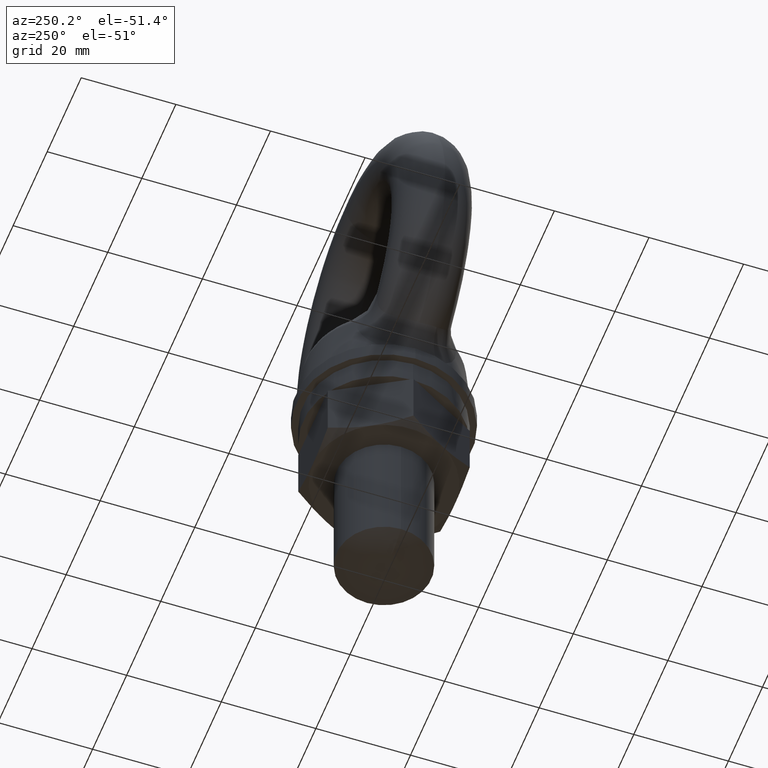
[diagram: clean part render]
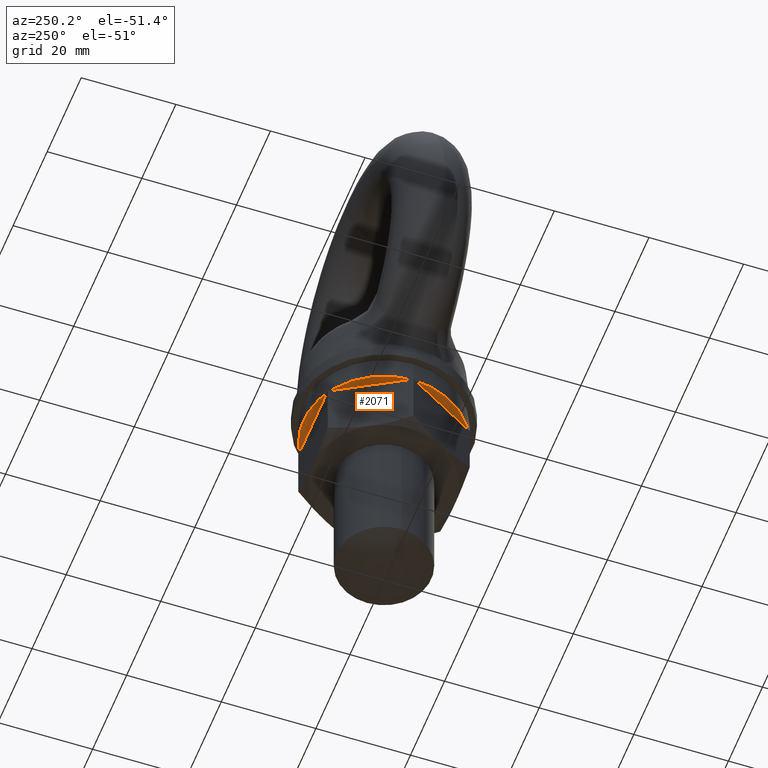
[diagram: same view with one face highlighted and labeled with its STEP entity id]
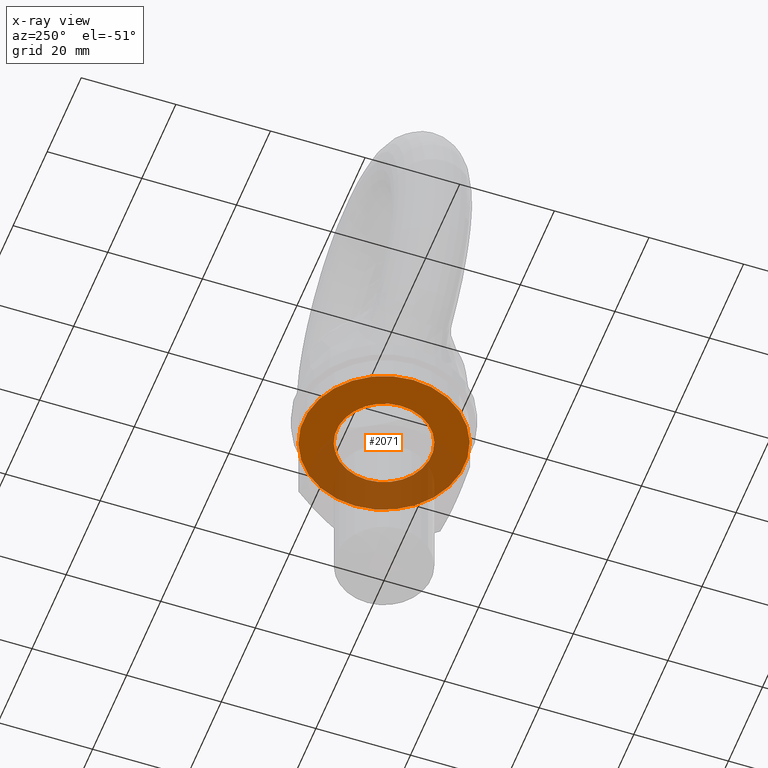
[diagram: x-ray of the same camera — body ghosted, the highlighted face saturated]
A machine part, auxiliary view. The second image highlights one B-rep face of the part: STEP entity #2071.
The next image is the same camera in x-ray: the body ghosted, the highlighted face saturated — about 43% of this face is hidden behind the body in this view.
In plain terms, the highlighted planar face has unit normal (0, 0, 1).
Its self-contained STEP definition (entity closure, byte-faithful):
#1979 = ORIENTED_EDGE ( 'NONE', *, *, #2007, .T. ) ;
#2007 = EDGE_CURVE ( 'NONE', #2041, #2040, #9128, .T. ) ;
#2010 = EDGE_CURVE ( 'NONE', #2093, #2092, #9112, .T. ) ;
#2039 = EDGE_CURVE ( 'NONE', #2040, #2041, #9073, .T. ) ;
#2040 = VERTEX_POINT ( 'NONE', #9069 ) ;
#2041 = VERTEX_POINT ( 'NONE', #9068 ) ;
#2050 = ORIENTED_EDGE ( 'NONE', *, *, #2039, .T. ) ;
#2071 = ADVANCED_FACE ( 'NONE', ( #8473, #8468 ), #8465, .F. ) ;
#2072 = EDGE_LOOP ( 'NONE', ( #2074, #2075 ) ) ;
#2074 = ORIENTED_EDGE ( 'NONE', *, *, #2091, .F. ) ;
#2075 = ORIENTED_EDGE ( 'NONE', *, *, #2010, .F. ) ;
#2091 = EDGE_CURVE ( 'NONE', #2092, #2093, #10567, .T. ) ;
#2092 = VERTEX_POINT ( 'NONE', #10558 ) ;
#2093 = VERTEX_POINT ( 'NONE', #10557 ) ;
#2100 = EDGE_LOOP ( 'NONE', ( #1979, #2050 ) ) ;
#8465 = PLANE ( 'NONE',  #9055 ) ;
#8468 = FACE_OUTER_BOUND ( 'NONE', #2100, .T. ) ;
#8473 = FACE_BOUND ( 'NONE', #2072, .T. ) ;
#9048 = DIRECTION ( 'NONE',  ( 0.0000000000000000000, 0.0000000000000000000, 1.000000000000000000 ) ) ;
#9049 = CARTESIAN_POINT ( 'NONE',  ( 0.0000000000000000000, 0.0000000000000000000, -43.29999900000009900 ) ) ;
#9055 = AXIS2_PLACEMENT_3D ( 'NONE', #9049, #9048, #9427 ) ;
#9068 = CARTESIAN_POINT ( 'NONE',  ( 17.04999900000000000, 0.0000000000000000000, -43.29999900000014900 ) ) ;
#9069 = CARTESIAN_POINT ( 'NONE',  ( -17.04999900000000000, 2.087953710806517600E-015, -43.29999900000014900 ) ) ;
#9070 = DIRECTION ( 'NONE',  ( 1.000000000000000000, 0.0000000000000000000, 0.0000000000000000000 ) ) ;
#9071 = DIRECTION ( 'NONE',  ( 0.0000000000000000000, 0.0000000000000000000, -1.000000000000000000 ) ) ;
#9072 = AXIS2_PLACEMENT_3D ( 'NONE', #9078, #9071, #9070 ) ;
#9073 = CIRCLE ( 'NONE', #9072, 17.04999900000000000 ) ;
#9078 = CARTESIAN_POINT ( 'NONE',  ( 0.0000000000000000000, 0.0000000000000000000, -43.29999900000014900 ) ) ;
#9108 = DIRECTION ( 'NONE',  ( 1.000000000000000000, 0.0000000000000000000, 0.0000000000000000000 ) ) ;
#9109 = DIRECTION ( 'NONE',  ( 0.0000000000000000000, 0.0000000000000000000, -1.000000000000000000 ) ) ;
#9110 = CARTESIAN_POINT ( 'NONE',  ( 0.0000000000000000000, 0.0000000000000000000, -43.29999900000014900 ) ) ;
#9111 = AXIS2_PLACEMENT_3D ( 'NONE', #9110, #9109, #9108 ) ;
#9112 = CIRCLE ( 'NONE', #9111, 10.00000000000000000 ) ;
#9113 = DIRECTION ( 'NONE',  ( 1.000000000000000000, 0.0000000000000000000, 0.0000000000000000000 ) ) ;
#9126 = DIRECTION ( 'NONE',  ( 0.0000000000000000000, 0.0000000000000000000, -1.000000000000000000 ) ) ;
#9127 = AXIS2_PLACEMENT_3D ( 'NONE', #9133, #9126, #9113 ) ;
#9128 = CIRCLE ( 'NONE', #9127, 17.04999900000000000 ) ;
#9133 = CARTESIAN_POINT ( 'NONE',  ( 0.0000000000000000000, 0.0000000000000000000, -43.29999900000014900 ) ) ;
#9427 = DIRECTION ( 'NONE',  ( 1.000000000000000000, 0.0000000000000000000, 0.0000000000000000000 ) ) ;
#10557 = CARTESIAN_POINT ( 'NONE',  ( -10.00000000000000000, 1.224606353822377300E-015, -43.29999900000014900 ) ) ;
#10558 = CARTESIAN_POINT ( 'NONE',  ( 10.00000000000000000, 0.0000000000000000000, -43.29999900000014900 ) ) ;
#10559 = DIRECTION ( 'NONE',  ( 1.000000000000000000, 0.0000000000000000000, 0.0000000000000000000 ) ) ;
#10560 = DIRECTION ( 'NONE',  ( 0.0000000000000000000, 0.0000000000000000000, -1.000000000000000000 ) ) ;
#10561 = CARTESIAN_POINT ( 'NONE',  ( 0.0000000000000000000, 0.0000000000000000000, -43.29999900000014900 ) ) ;
#10562 = AXIS2_PLACEMENT_3D ( 'NONE', #10561, #10560, #10559 ) ;
#10567 = CIRCLE ( 'NONE', #10562, 10.00000000000000000 ) ;